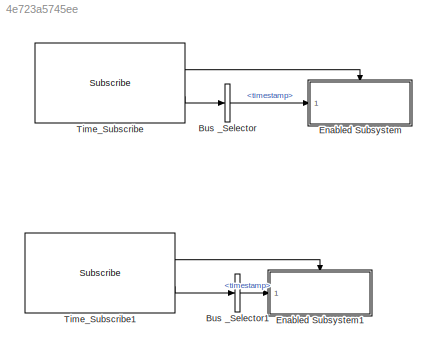
MODEL slx_4e723a5745ee
KIND model
CONFIG AbsTol = auto
CONFIG EnableMultiTasking = off
CONFIG FixedStep = auto
CONFIG MaxStep = auto
CONFIG MinStep = auto
CONFIG RelTol = 1e-3
CONFIG SampleTimeConstraint = Unconstrained
CONFIG SolverName = FixedStepAuto
CONFIG StartTime = 0.0
CONFIG StopTime = inf
BLOCK [BusSelector] Bus _Selector
  OutputSignals = timestamp
  Ports = [1, 1]
BLOCK [BusSelector] Bus _Selector1
  OutputSignals = timestamp
  Ports = [1, 1]
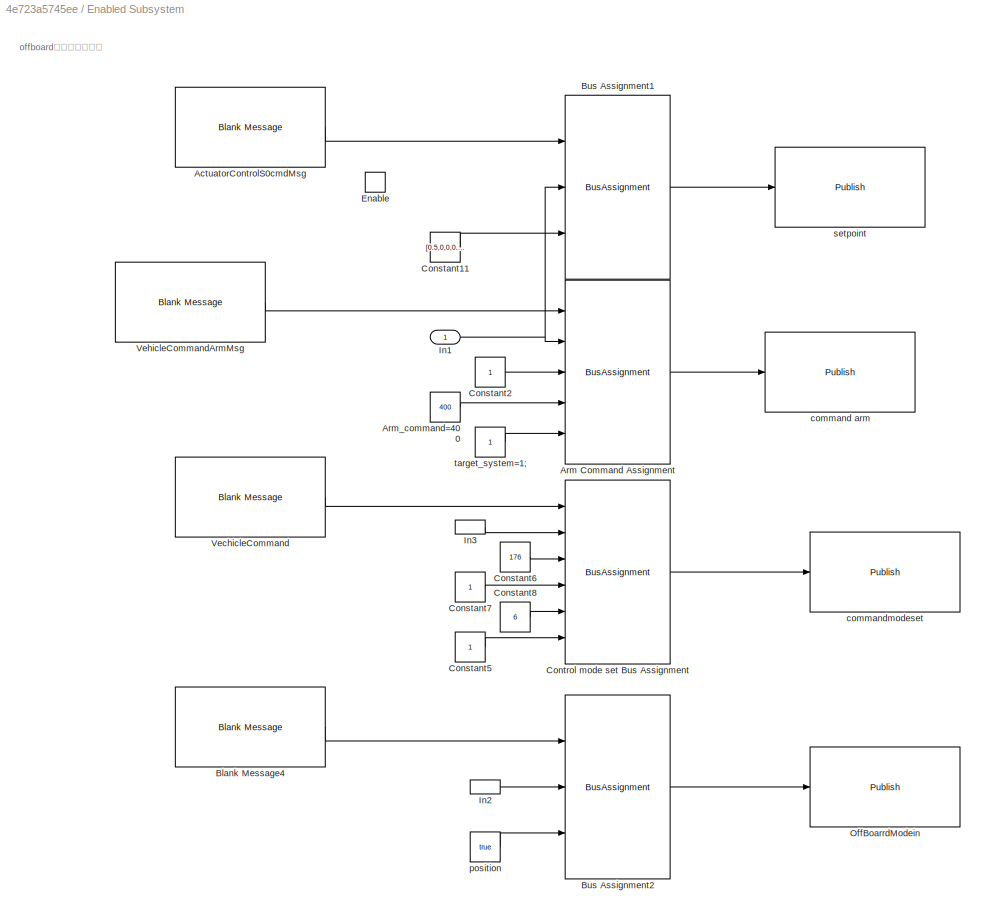
BLOCK [SubSystem] Enabled Subsystem
  Ports = [1, 0, 1]
  RequestExecContextInheritance = off
  TreatAsAtomicUnit = on
BLOCK [Reference] Enabled Subsystem/ActuatorControlS0cmdMsg  REF=ros2lib/Blank Message  (lib defined in slx_3c1549211f48)
  Ports = [0, 1]
  SourceBlock = ros2lib/Blank Message
  SourceProductBaseCode = RR
  SourceType = ROS2 Blank Message
BLOCK [BusAssignment] Enabled Subsystem/Arm Command Assignment
  AssignedSignals = timestamp,param1,command,target_system
  Ports = [5, 1]
BLOCK [Constant] Enabled Subsystem/Arm_command=400
  OutDataTypeStr = uint32
  Value = 400
BLOCK [Reference] Enabled Subsystem/Blank Message4  REF=ros2lib/Blank Message  (lib defined in slx_3c1549211f48)
  Ports = [0, 1]
  SourceBlock = ros2lib/Blank Message
  SourceProductBaseCode = RR
  SourceType = ROS2 Blank Message
BLOCK [BusAssignment] Enabled Subsystem/Bus Assignment1
  AssignedSignals = timestamp,control
  Ports = [3, 1]
BLOCK [BusAssignment] Enabled Subsystem/Bus Assignment2
  AssignedSignals = timestamp,actuator
  Ports = [3, 1]
BLOCK [Constant] Enabled Subsystem/Constant11
  OutDataTypeStr = single
  Value = [0.5,0,0,0.6,0,0,0,0]'
  VectorParams1D = off
BLOCK [Constant] Enabled Subsystem/Constant2
  OutDataTypeStr = single
BLOCK [Constant] Enabled Subsystem/Constant5
  OutDataTypeStr = uint8
BLOCK [Constant] Enabled Subsystem/Constant6
  OutDataTypeStr = uint32
  Value = 176
  VectorParams1D = off
BLOCK [Constant] Enabled Subsystem/Constant7
  OutDataTypeStr = single
BLOCK [Constant] Enabled Subsystem/Constant8
  OutDataTypeStr = single
  Value = 6
BLOCK [BusAssignment] Enabled Subsystem/Control mode set Bus Assignment
  AssignedSignals = timestamp,command,param1,param2,target_system
  Ports = [6, 1]
BLOCK [EnablePort] Enabled Subsystem/Enable
  Ports = []
BLOCK [Inport] Enabled Subsystem/In1
BLOCK [InportShadow] Enabled Subsystem/In2
BLOCK [InportShadow] Enabled Subsystem/In3
BLOCK [Reference] Enabled Subsystem/OffBoarrdModein  REF=ros2lib/Publish  (lib defined in slx_3c1549211f48)
  Ports = [1]
  SourceBlock = ros2lib/Publish
  SourceProductBaseCode = RR
  SourceType = ROS2 Publish
BLOCK [Reference] Enabled Subsystem/VechicleCommand  REF=ros2lib/Blank Message  (lib defined in slx_3c1549211f48)
  Ports = [0, 1]
  SourceBlock = ros2lib/Blank Message
  SourceProductBaseCode = RR
  SourceType = ROS2 Blank Message
BLOCK [Reference] Enabled Subsystem/VehicleCommandArmMsg  REF=ros2lib/Blank Message  (lib defined in slx_3c1549211f48)
  Ports = [0, 1]
  SourceBlock = ros2lib/Blank Message
  SourceProductBaseCode = RR
  SourceType = ROS2 Blank Message
BLOCK [Reference] Enabled Subsystem/command arm  REF=ros2lib/Publish  (lib defined in slx_3c1549211f48)
  Ports = [1]
  SourceBlock = ros2lib/Publish
  SourceProductBaseCode = RR
  SourceType = ROS2 Publish
BLOCK [Reference] Enabled Subsystem/commandmodeset  REF=ros2lib/Publish  (lib defined in slx_3c1549211f48)
  Ports = [1]
  SourceBlock = ros2lib/Publish
  SourceProductBaseCode = RR
  SourceType = ROS2 Publish
BLOCK [Constant] Enabled Subsystem/position
  OutDataTypeStr = boolean
  Value = true
BLOCK [Reference] Enabled Subsystem/setpoint  REF=ros2lib/Publish  (lib defined in slx_3c1549211f48)
  Ports = [1]
  SourceBlock = ros2lib/Publish
  SourceProductBaseCode = RR
  SourceType = ROS2 Publish
BLOCK [Constant] Enabled Subsystem/target_system=1;
  OutDataTypeStr = uint8
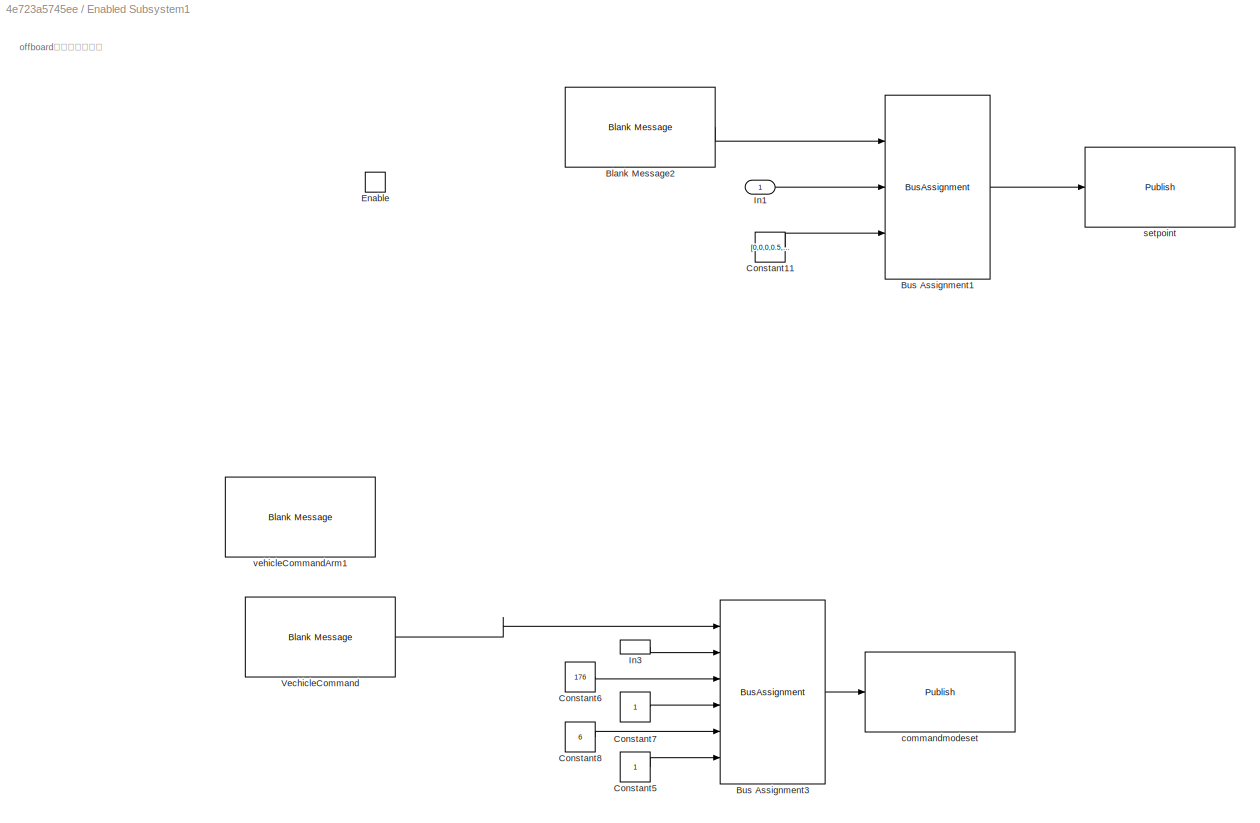
BLOCK [SubSystem] Enabled Subsystem1
  Ports = [1, 0, 1]
  RequestExecContextInheritance = off
  TreatAsAtomicUnit = on
BLOCK [Reference] Enabled Subsystem1/Blank Message2  REF=ros2lib/Blank Message  (lib defined in slx_3c1549211f48)
  Ports = [0, 1]
  SourceBlock = ros2lib/Blank Message
  SourceProductBaseCode = RR
  SourceType = ROS2 Blank Message
BLOCK [BusAssignment] Enabled Subsystem1/Bus Assignment1
  AssignedSignals = timestamp,control
  Ports = [3, 1]
BLOCK [BusAssignment] Enabled Subsystem1/Bus Assignment3
  AssignedSignals = timestamp,command,param1,param2,target_system
  Ports = [6, 1]
BLOCK [Constant] Enabled Subsystem1/Constant11
  OutDataTypeStr = single
  SampleTime = 0.02
  Value = [0,0,0,0.5,0,0,0,0]'
  VectorParams1D = off
BLOCK [Constant] Enabled Subsystem1/Constant5
  OutDataTypeStr = uint8
BLOCK [Constant] Enabled Subsystem1/Constant6
  OutDataTypeStr = uint32
  Value = 176
  VectorParams1D = off
BLOCK [Constant] Enabled Subsystem1/Constant7
  OutDataTypeStr = single
BLOCK [Constant] Enabled Subsystem1/Constant8
  OutDataTypeStr = single
  Value = 6
BLOCK [EnablePort] Enabled Subsystem1/Enable
  Ports = []
BLOCK [Inport] Enabled Subsystem1/In1
BLOCK [InportShadow] Enabled Subsystem1/In3
BLOCK [Reference] Enabled Subsystem1/VechicleCommand  REF=ros2lib/Blank Message  (lib defined in slx_3c1549211f48)
  Ports = [0, 1]
  SourceBlock = ros2lib/Blank Message
  SourceProductBaseCode = RR
  SourceType = ROS2 Blank Message
BLOCK [Reference] Enabled Subsystem1/commandmodeset  REF=ros2lib/Publish  (lib defined in slx_3c1549211f48)
  Ports = [1]
  SourceBlock = ros2lib/Publish
  SourceProductBaseCode = RR
  SourceType = ROS2 Publish
BLOCK [Reference] Enabled Subsystem1/setpoint  REF=ros2lib/Publish  (lib defined in slx_3c1549211f48)
  Ports = [1]
  SourceBlock = ros2lib/Publish
  SourceProductBaseCode = RR
  SourceType = ROS2 Publish
BLOCK [Reference] Enabled Subsystem1/vehicleCommandArm1  REF=ros2lib/Blank Message  (lib defined in slx_3c1549211f48)
  Ports = [0, 1]
  SourceBlock = ros2lib/Blank Message
  SourceProductBaseCode = RR
  SourceType = ROS2 Blank Message
BLOCK [Reference] Time_Subscribe  REF=ros2lib/Subscribe  (lib defined in slx_3c1549211f48)
  Ports = [0, 2]
  SourceBlock = ros2lib/Subscribe
  SourceProductBaseCode = RR
  SourceType = ROS2 Subscribe
BLOCK [Reference] Time_Subscribe1  REF=ros2lib/Subscribe  (lib defined in slx_3c1549211f48)
  Ports = [0, 2]
  SourceBlock = ros2lib/Subscribe
  SourceProductBaseCode = RR
  SourceType = ROS2 Subscribe
ANNOTATION Enabled Subsystem: offboard模式下轨迹跟踪
ANNOTATION Enabled Subsystem1: offboard模式下轨迹跟踪
LINE Bus _Selector1:1 -> Enabled Subsystem1:1
LINE Bus _Selector:1 -> Enabled Subsystem:1
LINE Enabled Subsystem/ActuatorControlS0cmdMsg:1 -> Enabled Subsystem/Bus Assignment1:1
LINE Enabled Subsystem/Arm Command Assignment:1 -> Enabled Subsystem/command arm:1
LINE Enabled Subsystem/Arm_command=400:1 -> Enabled Subsystem/Arm Command Assignment:4
LINE Enabled Subsystem/Blank Message4:1 -> Enabled Subsystem/Bus Assignment2:1
LINE Enabled Subsystem/Bus Assignment1:1 -> Enabled Subsystem/setpoint:1
LINE Enabled Subsystem/Bus Assignment2:1 -> Enabled Subsystem/OffBoarrdModein:1
LINE Enabled Subsystem/Constant11:1 -> Enabled Subsystem/Bus Assignment1:3
LINE Enabled Subsystem/Constant2:1 -> Enabled Subsystem/Arm Command Assignment:3
LINE Enabled Subsystem/Constant5:1 -> Enabled Subsystem/Control mode set Bus Assignment:6
LINE Enabled Subsystem/Constant6:1 -> Enabled Subsystem/Control mode set Bus Assignment:3
LINE Enabled Subsystem/Constant7:1 -> Enabled Subsystem/Control mode set Bus Assignment:4
LINE Enabled Subsystem/Constant8:1 -> Enabled Subsystem/Control mode set Bus Assignment:5
LINE Enabled Subsystem/Control mode set Bus Assignment:1 -> Enabled Subsystem/commandmodeset:1
NET Enabled Subsystem/In1:1 -> Enabled Subsystem/Arm Command Assignment:2, Enabled Subsystem/Bus Assignment1:2
LINE Enabled Subsystem/In2:1 -> Enabled Subsystem/Bus Assignment2:2
LINE Enabled Subsystem/In3:1 -> Enabled Subsystem/Control mode set Bus Assignment:2
LINE Enabled Subsystem/VechicleCommand:1 -> Enabled Subsystem/Control mode set Bus Assignment:1
LINE Enabled Subsystem/VehicleCommandArmMsg:1 -> Enabled Subsystem/Arm Command Assignment:1
LINE Enabled Subsystem/position:1 -> Enabled Subsystem/Bus Assignment2:3
LINE Enabled Subsystem/target_system=1;:1 -> Enabled Subsystem/Arm Command Assignment:5
LINE Enabled Subsystem1/Blank Message2:1 -> Enabled Subsystem1/Bus Assignment1:1
LINE Enabled Subsystem1/Bus Assignment1:1 -> Enabled Subsystem1/setpoint:1
LINE Enabled Subsystem1/Bus Assignment3:1 -> Enabled Subsystem1/commandmodeset:1
LINE Enabled Subsystem1/Constant11:1 -> Enabled Subsystem1/Bus Assignment1:3
LINE Enabled Subsystem1/Constant5:1 -> Enabled Subsystem1/Bus Assignment3:6
LINE Enabled Subsystem1/Constant6:1 -> Enabled Subsystem1/Bus Assignment3:3
LINE Enabled Subsystem1/Constant7:1 -> Enabled Subsystem1/Bus Assignment3:4
LINE Enabled Subsystem1/Constant8:1 -> Enabled Subsystem1/Bus Assignment3:5
LINE Enabled Subsystem1/In1:1 -> Enabled Subsystem1/Bus Assignment1:2
LINE Enabled Subsystem1/In3:1 -> Enabled Subsystem1/Bus Assignment3:2
LINE Enabled Subsystem1/VechicleCommand:1 -> Enabled Subsystem1/Bus Assignment3:1
LINE Time_Subscribe1:1 -> Enabled Subsystem1:enable
LINE Time_Subscribe1:2 -> Bus _Selector1:1
LINE Time_Subscribe:1 -> Enabled Subsystem:enable
LINE Time_Subscribe:2 -> Bus _Selector:1
note: NET lines group one-source signal fan-out (src -> all destinations, sorted); 1:1 wires keep LINE
